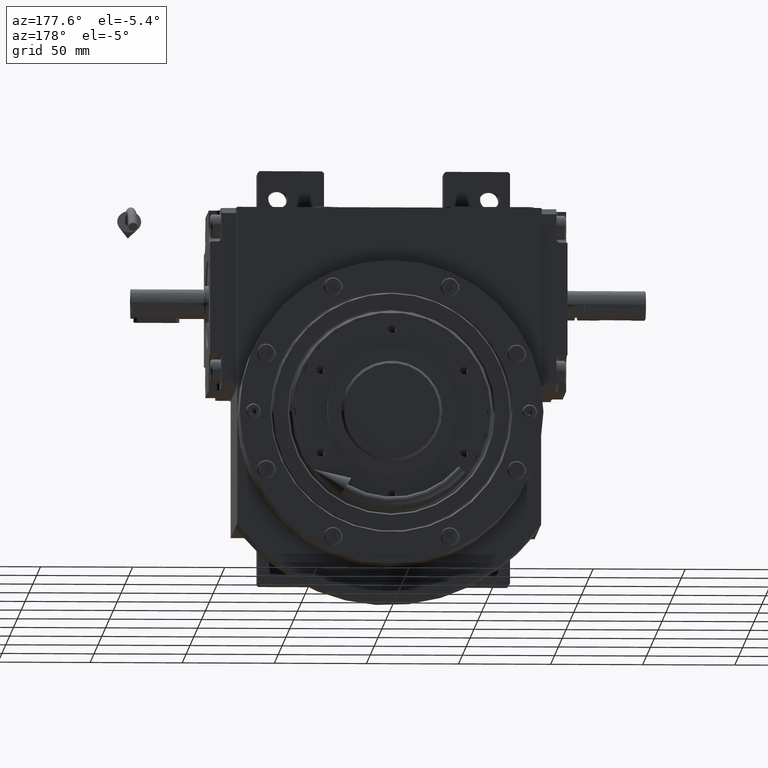
[diagram: clean part render]
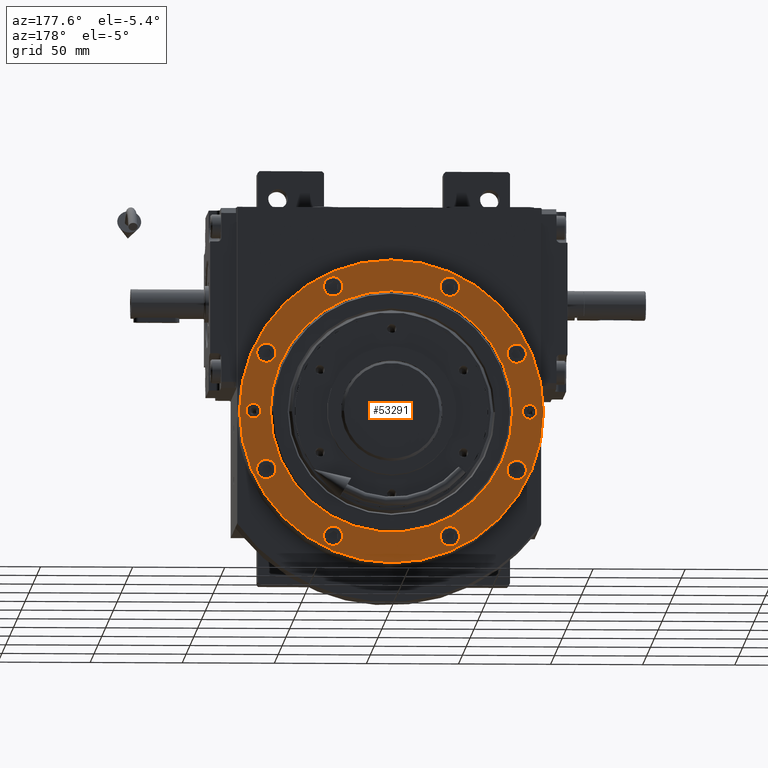
[diagram: same view with one face highlighted and labeled with its STEP entity id]
A machine part, auxiliary view. The second image highlights one B-rep face of the part: STEP entity #53291.
In plain terms, the highlighted planar face has unit normal (0, 1, 0).
Its self-contained STEP definition (entity closure, byte-faithful):
#33 = EDGE_LOOP ( 'NONE', ( #10800, #19162 ) ) ;
#389 = CARTESIAN_POINT ( 'NONE',  ( 26.44636963054999867, 67.97308402775000502, 30.49999999999999289 ) ) ;
#425 = CARTESIAN_POINT ( 'NONE',  ( -71.00000000000001421, 1.521575012437008940E-14, 30.49999999999999289 ) ) ;
#809 = ORIENTED_EDGE ( 'NONE', *, *, #32260, .F. ) ;
#834 = EDGE_CURVE ( 'NONE', #56146, #12141, #54883, .T. ) ;
#1018 = DIRECTION ( 'NONE',  ( 0.000000000000000000, 0.000000000000000000, -1.000000000000000000 ) ) ;
#1527 = ORIENTED_EDGE ( 'NONE', *, *, #50122, .T. ) ;
#1561 = DIRECTION ( 'NONE',  ( -1.000000000000000000, 0.000000000000000000, 0.000000000000000000 ) ) ;
#1633 = ORIENTED_EDGE ( 'NONE', *, *, #9458, .F. ) ;
#2034 = PLANE ( 'NONE',  #27391 ) ;
#2068 = DIRECTION ( 'NONE',  ( 1.000000000000000000, 0.000000000000000000, 0.000000000000000000 ) ) ;
#2167 = EDGE_CURVE ( 'NONE', #12141, #46034, #46829, .T. ) ;
#2206 = AXIS2_PLACEMENT_3D ( 'NONE', #13892, #28462, #19049 ) ;
#2379 = CIRCLE ( 'NONE', #59144, 5.249999999999997335 ) ;
#3156 = CARTESIAN_POINT ( 'NONE',  ( 82.49999999999998579, -1.010300241903009221E-14, 30.49999999999999289 ) ) ;
#3338 = CARTESIAN_POINT ( 'NONE',  ( 31.69636963055000223, -67.97308402775000502, 30.49999999999999289 ) ) ;
#3455 = CARTESIAN_POINT ( 'NONE',  ( 67.97308402774999081, -31.69636963055000223, 30.49999999999999289 ) ) ;
#3570 = VERTEX_POINT ( 'NONE', #4618 ) ;
#3676 = EDGE_CURVE ( 'NONE', #11133, #19390, #17561, .T. ) ;
#4008 = DIRECTION ( 'NONE',  ( 1.000000000000000000, 0.000000000000000000, 0.000000000000000000 ) ) ;
#4419 = ORIENTED_EDGE ( 'NONE', *, *, #33409, .T. ) ;
#4477 = ORIENTED_EDGE ( 'NONE', *, *, #3676, .F. ) ;
#4618 = CARTESIAN_POINT ( 'NONE',  ( -62.72308402775001213, 31.69636963055000223, 30.49999999999999289 ) ) ;
#4718 = CARTESIAN_POINT ( 'NONE',  ( -65.72795184286999870, 0.000000000000000000, 30.49999232216999445 ) ) ;
#5043 = CIRCLE ( 'NONE', #7103, 5.250000000000004441 ) ;
#5050 = EDGE_LOOP ( 'NONE', ( #39748, #44802 ) ) ;
#6029 = CIRCLE ( 'NONE', #46284, 4.000000000000003553 ) ;
#6436 = CARTESIAN_POINT ( 'NONE',  ( -73.22308402774999081, -31.69636963055000223, 30.49999999999999289 ) ) ;
#6452 = AXIS2_PLACEMENT_3D ( 'NONE', #57870, #53049, #23589 ) ;
#6542 = AXIS2_PLACEMENT_3D ( 'NONE', #10741, #1018, #30771 ) ;
#7103 = AXIS2_PLACEMENT_3D ( 'NONE', #63644, #59121, #48701 ) ;
#7267 = VERTEX_POINT ( 'NONE', #41199 ) ;
#8643 = CIRCLE ( 'NONE', #13795, 5.249999999999997335 ) ;
#8681 = EDGE_CURVE ( 'NONE', #50046, #7267, #38544, .T. ) ;
#8884 = DIRECTION ( 'NONE',  ( 0.000000000000000000, 0.000000000000000000, 1.000000000000000000 ) ) ;
#9085 = EDGE_CURVE ( 'NONE', #59085, #54147, #40626, .T. ) ;
#9404 = EDGE_CURVE ( 'NONE', #56834, #3570, #23069, .T. ) ;
#9458 = EDGE_CURVE ( 'NONE', #41599, #57213, #8643, .T. ) ;
#9707 = DIRECTION ( 'NONE',  ( 0.000000000000000000, 0.000000000000000000, 1.000000000000000000 ) ) ;
#9805 = EDGE_CURVE ( 'NONE', #28132, #36529, #51036, .T. ) ;
#9974 = CARTESIAN_POINT ( 'NONE',  ( -67.97308402775001923, -31.69636963055000223, 30.49999999999999289 ) ) ;
#10029 = CIRCLE ( 'NONE', #12113, 5.249999999999997335 ) ;
#10594 = EDGE_LOOP ( 'NONE', ( #11540, #38630 ) ) ;
#10741 = CARTESIAN_POINT ( 'NONE',  ( 2.060573933704000491E-13, 4.440892098501000776E-13, 30.49999232216999445 ) ) ;
#10800 = ORIENTED_EDGE ( 'NONE', *, *, #26251, .F. ) ;
#11133 = VERTEX_POINT ( 'NONE', #39059 ) ;
#11540 = ORIENTED_EDGE ( 'NONE', *, *, #52260, .F. ) ;
#11635 = CARTESIAN_POINT ( 'NONE',  ( -31.69636963055000223, 67.97308402775000502, 30.49999999999999289 ) ) ;
#11729 = DIRECTION ( 'NONE',  ( -1.000000000000000000, 0.000000000000000000, 0.000000000000000000 ) ) ;
#11863 = ORIENTED_EDGE ( 'NONE', *, *, #17849, .F. ) ;
#11904 = DIRECTION ( 'NONE',  ( -1.000000000000000000, 0.000000000000000000, 0.000000000000000000 ) ) ;
#12113 = AXIS2_PLACEMENT_3D ( 'NONE', #34709, #8884, #14022 ) ;
#12141 = VERTEX_POINT ( 'NONE', #30496 ) ;
#12197 = VERTEX_POINT ( 'NONE', #425 ) ;
#12690 = FACE_BOUND ( 'NONE', #21870, .T. ) ;
#12772 = CARTESIAN_POINT ( 'NONE',  ( -75.00000000000001421, 1.423604886319003288E-14, 30.49999999999999289 ) ) ;
#13473 = DIRECTION ( 'NONE',  ( 1.000000000000000000, 0.000000000000000000, 0.000000000000000000 ) ) ;
#13733 = DIRECTION ( 'NONE',  ( 0.000000000000000000, 0.000000000000000000, -1.000000000000000000 ) ) ;
#13789 = CARTESIAN_POINT ( 'NONE',  ( -36.94636963055000223, -67.97308402775000502, 30.49999999999999289 ) ) ;
#13795 = AXIS2_PLACEMENT_3D ( 'NONE', #11635, #46223, #51725 ) ;
#13892 = CARTESIAN_POINT ( 'NONE',  ( 1.918465386552000143E-13, 1.438849039913999161E-13, 30.49999232216999445 ) ) ;
#14017 = CARTESIAN_POINT ( 'NONE',  ( 73.22308402774999081, 31.69636963055000223, 30.49999999999999289 ) ) ;
#14022 = DIRECTION ( 'NONE',  ( 1.000000000000000000, 0.000000000000000000, 0.000000000000000000 ) ) ;
#14635 = VERTEX_POINT ( 'NONE', #37178 ) ;
#15444 = DIRECTION ( 'NONE',  ( 0.000000000000000000, 0.000000000000000000, -1.000000000000000000 ) ) ;
#15588 = CARTESIAN_POINT ( 'NONE',  ( 67.97308402774999081, -31.69636963055000223, 30.49999999999999289 ) ) ;
#15749 = ORIENTED_EDGE ( 'NONE', *, *, #9805, .T. ) ;
#15944 = EDGE_CURVE ( 'NONE', #28303, #14635, #44658, .T. ) ;
#15970 = CIRCLE ( 'NONE', #20125, 5.250000000000004441 ) ;
#16193 = VERTEX_POINT ( 'NONE', #6436 ) ;
#16808 = ORIENTED_EDGE ( 'NONE', *, *, #31658, .F. ) ;
#16848 = ORIENTED_EDGE ( 'NONE', *, *, #31490, .T. ) ;
#17050 = DIRECTION ( 'NONE',  ( 0.000000000000000000, 0.000000000000000000, 1.000000000000000000 ) ) ;
#17202 = CIRCLE ( 'NONE', #52357, 5.250000000000000888 ) ;
#17276 = EDGE_LOOP ( 'NONE', ( #25612, #24587, #1527 ) ) ;
#17523 = FACE_BOUND ( 'NONE', #58246, .T. ) ;
#17561 = CIRCLE ( 'NONE', #46484, 5.250000000000004441 ) ;
#17849 = EDGE_CURVE ( 'NONE', #32977, #57525, #17202, .T. ) ;
#17858 = FACE_BOUND ( 'NONE', #42935, .T. ) ;
#17896 = DIRECTION ( 'NONE',  ( 1.000000000000000000, 0.000000000000000000, 0.000000000000000000 ) ) ;
#18895 = AXIS2_PLACEMENT_3D ( 'NONE', #23878, #24824, #44879 ) ;
#18923 = AXIS2_PLACEMENT_3D ( 'NONE', #27295, #62527, #37941 ) ;
#19040 = CARTESIAN_POINT ( 'NONE',  ( -36.94636963055000223, 67.97308402775000502, 30.49999999999999289 ) ) ;
#19049 = DIRECTION ( 'NONE',  ( -1.000000000000000000, 0.000000000000000000, 0.000000000000000000 ) ) ;
#19162 = ORIENTED_EDGE ( 'NONE', *, *, #53576, .F. ) ;
#19390 = VERTEX_POINT ( 'NONE', #39638 ) ;
#19917 = DIRECTION ( 'NONE',  ( 0.000000000000000000, 0.000000000000000000, 1.000000000000000000 ) ) ;
#19964 = AXIS2_PLACEMENT_3D ( 'NONE', #40405, #9707, #45261 ) ;
#20125 = AXIS2_PLACEMENT_3D ( 'NONE', #28446, #19917, #48161 ) ;
#21870 = EDGE_LOOP ( 'NONE', ( #56902, #11863 ) ) ;
#22386 = FACE_BOUND ( 'NONE', #10594, .T. ) ;
#23069 = CIRCLE ( 'NONE', #19964, 5.250000000000004441 ) ;
#23141 = CARTESIAN_POINT ( 'NONE',  ( 31.69636963055000223, 67.97308402775000502, 30.49999999999999289 ) ) ;
#23589 = DIRECTION ( 'NONE',  ( -1.000000000000000000, 0.000000000000000000, 0.000000000000000000 ) ) ;
#23748 = CARTESIAN_POINT ( 'NONE',  ( -82.50000000000001421, 2.020633851199993078E-14, 30.49999999999999289 ) ) ;
#23878 = CARTESIAN_POINT ( 'NONE',  ( -31.69636963055000223, 67.97308402775000502, 30.49999999999999289 ) ) ;
#24587 = ORIENTED_EDGE ( 'NONE', *, *, #2167, .T. ) ;
#24824 = DIRECTION ( 'NONE',  ( 0.000000000000000000, 0.000000000000000000, 1.000000000000000000 ) ) ;
#25104 = CARTESIAN_POINT ( 'NONE',  ( -79.00000000000001421, 1.374620632166009432E-14, 30.49999999999999289 ) ) ;
#25612 = ORIENTED_EDGE ( 'NONE', *, *, #834, .T. ) ;
#25807 = CARTESIAN_POINT ( 'NONE',  ( -67.97308402775001923, 31.69636963055000223, 30.49999999999999289 ) ) ;
#26154 = EDGE_CURVE ( 'NONE', #57303, #12197, #31340, .T. ) ;
#26251 = EDGE_CURVE ( 'NONE', #53805, #16193, #57129, .T. ) ;
#26654 = CARTESIAN_POINT ( 'NONE',  ( 0.000000000000000000, 0.000000000000000000, 30.49999999999999289 ) ) ;
#27295 = CARTESIAN_POINT ( 'NONE',  ( 2.060573933704000491E-13, 4.440892098501000776E-13, 30.49999232216999445 ) ) ;
#27391 = AXIS2_PLACEMENT_3D ( 'NONE', #36640, #32094, #42124 ) ;
#27561 = FACE_BOUND ( 'NONE', #33, .T. ) ;
#27852 = EDGE_CURVE ( 'NONE', #57213, #41599, #41634, .T. ) ;
#28132 = VERTEX_POINT ( 'NONE', #51661 ) ;
#28303 = VERTEX_POINT ( 'NONE', #13789 ) ;
#28446 = CARTESIAN_POINT ( 'NONE',  ( -67.97308402775001923, -31.69636963055000223, 30.49999999999999289 ) ) ;
#28462 = DIRECTION ( 'NONE',  ( 0.000000000000000000, 0.000000000000000000, -1.000000000000000000 ) ) ;
#28601 = CARTESIAN_POINT ( 'NONE',  ( -31.69636963055000223, -67.97308402775000502, 30.49999999999999289 ) ) ;
#28899 = CARTESIAN_POINT ( 'NONE',  ( 67.97308402774999081, 31.69636963055000223, 30.49999999999999289 ) ) ;
#30258 = AXIS2_PLACEMENT_3D ( 'NONE', #58180, #53342, #63657 ) ;
#30274 = CARTESIAN_POINT ( 'NONE',  ( 26.44636963054999867, -67.97308402775000502, 30.49999999999999289 ) ) ;
#30496 = CARTESIAN_POINT ( 'NONE',  ( 65.72795184286999870, 1.310051197827999923E-14, 30.49999232216999445 ) ) ;
#30771 = DIRECTION ( 'NONE',  ( 1.000000000000000000, 0.000000000000000000, 0.000000000000000000 ) ) ;
#31309 = DIRECTION ( 'NONE',  ( 0.000000000000000000, 0.000000000000000000, 1.000000000000000000 ) ) ;
#31340 = CIRCLE ( 'NONE', #30258, 4.000000000000003553 ) ;
#31351 = AXIS2_PLACEMENT_3D ( 'NONE', #26654, #50285, #2068 ) ;
#31490 = EDGE_CURVE ( 'NONE', #54147, #59085, #54970, .T. ) ;
#31625 = CARTESIAN_POINT ( 'NONE',  ( 74.99999999999998579, 0.000000000000000000, 30.49999999999999289 ) ) ;
#31658 = EDGE_CURVE ( 'NONE', #19390, #11133, #59565, .T. ) ;
#31695 = AXIS2_PLACEMENT_3D ( 'NONE', #3455, #57459, #13473 ) ;
#31931 = CARTESIAN_POINT ( 'NONE',  ( 0.000000000000000000, 0.000000000000000000, 30.49999999999999289 ) ) ;
#32094 = DIRECTION ( 'NONE',  ( 0.000000000000000000, 0.000000000000000000, 1.000000000000000000 ) ) ;
#32260 = EDGE_CURVE ( 'NONE', #7267, #50046, #10029, .T. ) ;
#32305 = EDGE_CURVE ( 'NONE', #14635, #28303, #57587, .T. ) ;
#32419 = FACE_BOUND ( 'NONE', #62575, .T. ) ;
#32673 = DIRECTION ( 'NONE',  ( -1.000000000000000000, 0.000000000000000000, 0.000000000000000000 ) ) ;
#32977 = VERTEX_POINT ( 'NONE', #30274 ) ;
#33118 = ORIENTED_EDGE ( 'NONE', *, *, #46684, .T. ) ;
#33409 = EDGE_CURVE ( 'NONE', #12197, #57303, #6029, .T. ) ;
#34327 = ORIENTED_EDGE ( 'NONE', *, *, #15944, .F. ) ;
#34628 = CARTESIAN_POINT ( 'NONE',  ( -73.22308402774999081, 31.69636963055000223, 30.49999999999999289 ) ) ;
#34709 = CARTESIAN_POINT ( 'NONE',  ( 31.69636963055000223, 67.97308402775000502, 30.49999999999999289 ) ) ;
#35200 = DIRECTION ( 'NONE',  ( 1.000000000000000000, 0.000000000000000000, 0.000000000000000000 ) ) ;
#35560 = AXIS2_PLACEMENT_3D ( 'NONE', #63632, #54260, #42968 ) ;
#36321 = CARTESIAN_POINT ( 'NONE',  ( 62.72308402774998370, 31.69636963055000223, 30.49999999999999289 ) ) ;
#36521 = CIRCLE ( 'NONE', #6542, 65.72795184286999870 ) ;
#36529 = VERTEX_POINT ( 'NONE', #51996 ) ;
#36640 = CARTESIAN_POINT ( 'NONE',  ( 0.000000000000000000, 0.000000000000000000, 30.49999999999999289 ) ) ;
#36749 = EDGE_LOOP ( 'NONE', ( #4419, #41669 ) ) ;
#36949 = FACE_BOUND ( 'NONE', #17276, .T. ) ;
#37075 = VERTEX_POINT ( 'NONE', #14017 ) ;
#37178 = CARTESIAN_POINT ( 'NONE',  ( -26.44636963054999867, -67.97308402775000502, 30.49999999999999289 ) ) ;
#37517 = VERTEX_POINT ( 'NONE', #36321 ) ;
#37691 = DIRECTION ( 'NONE',  ( 0.000000000000000000, 0.000000000000000000, 1.000000000000000000 ) ) ;
#37893 = FACE_BOUND ( 'NONE', #59858, .T. ) ;
#37941 = DIRECTION ( 'NONE',  ( 1.000000000000000000, 0.000000000000000000, 0.000000000000000000 ) ) ;
#38131 = CARTESIAN_POINT ( 'NONE',  ( -26.44636963054999867, 67.97308402775000502, 30.49999999999999289 ) ) ;
#38544 = CIRCLE ( 'NONE', #41652, 5.250000000000000888 ) ;
#38630 = ORIENTED_EDGE ( 'NONE', *, *, #9404, .F. ) ;
#39059 = CARTESIAN_POINT ( 'NONE',  ( 62.72308402774998370, -31.69636963055000223, 30.49999999999999289 ) ) ;
#39255 = AXIS2_PLACEMENT_3D ( 'NONE', #31625, #15444, #11904 ) ;
#39638 = CARTESIAN_POINT ( 'NONE',  ( 73.22308402774999081, -31.69636963055000223, 30.49999999999999289 ) ) ;
#39748 = ORIENTED_EDGE ( 'NONE', *, *, #63495, .F. ) ;
#40405 = CARTESIAN_POINT ( 'NONE',  ( -67.97308402775001923, 31.69636963055000223, 30.49999999999999289 ) ) ;
#40626 = CIRCLE ( 'NONE', #31351, 82.50000000000000000 ) ;
#41199 = CARTESIAN_POINT ( 'NONE',  ( 36.94636963055000223, 67.97308402775000502, 30.49999999999999289 ) ) ;
#41494 = FACE_BOUND ( 'NONE', #36749, .T. ) ;
#41586 = CARTESIAN_POINT ( 'NONE',  ( -62.72308402775001213, -31.69636963055000223, 30.49999999999999289 ) ) ;
#41599 = VERTEX_POINT ( 'NONE', #19040 ) ;
#41634 = CIRCLE ( 'NONE', #18895, 5.250000000000000888 ) ;
#41652 = AXIS2_PLACEMENT_3D ( 'NONE', #23141, #37691, #61961 ) ;
#41669 = ORIENTED_EDGE ( 'NONE', *, *, #26154, .T. ) ;
#42124 = DIRECTION ( 'NONE',  ( 1.000000000000000000, 0.000000000000000000, 0.000000000000000000 ) ) ;
#42218 = CARTESIAN_POINT ( 'NONE',  ( 36.94636963055000223, -67.97308402775000502, 30.49999999999999289 ) ) ;
#42264 = CIRCLE ( 'NONE', #59795, 5.250000000000004441 ) ;
#42391 = DIRECTION ( 'NONE',  ( 0.000000000000000000, 0.000000000000000000, 1.000000000000000000 ) ) ;
#42483 = DIRECTION ( 'NONE',  ( 0.000000000000000000, 0.000000000000000000, 1.000000000000000000 ) ) ;
#42698 = AXIS2_PLACEMENT_3D ( 'NONE', #9974, #49107, #35200 ) ;
#42826 = DIRECTION ( 'NONE',  ( 0.000000000000000000, 0.000000000000000000, 1.000000000000000000 ) ) ;
#42935 = EDGE_LOOP ( 'NONE', ( #809, #58082 ) ) ;
#42968 = DIRECTION ( 'NONE',  ( 1.000000000000000000, 0.000000000000000000, 0.000000000000000000 ) ) ;
#44655 = CARTESIAN_POINT ( 'NONE',  ( 2.060573933704000491E-13, -65.72795184287261350, 30.49999232216999445 ) ) ;
#44658 = CIRCLE ( 'NONE', #6452, 5.249999999999997335 ) ;
#44802 = ORIENTED_EDGE ( 'NONE', *, *, #45091, .F. ) ;
#44879 = DIRECTION ( 'NONE',  ( 1.000000000000000000, 0.000000000000000000, 0.000000000000000000 ) ) ;
#45091 = EDGE_CURVE ( 'NONE', #37517, #37075, #5043, .T. ) ;
#45261 = DIRECTION ( 'NONE',  ( -1.000000000000000000, 0.000000000000000000, 0.000000000000000000 ) ) ;
#46034 = VERTEX_POINT ( 'NONE', #44655 ) ;
#46223 = DIRECTION ( 'NONE',  ( 0.000000000000000000, 0.000000000000000000, 1.000000000000000000 ) ) ;
#46284 = AXIS2_PLACEMENT_3D ( 'NONE', #12772, #13733, #48006 ) ;
#46484 = AXIS2_PLACEMENT_3D ( 'NONE', #15588, #58642, #11729 ) ;
#46491 = DIRECTION ( 'NONE',  ( 1.000000000000000000, 0.000000000000000000, 0.000000000000000000 ) ) ;
#46684 = EDGE_CURVE ( 'NONE', #36529, #28132, #52715, .T. ) ;
#46829 = CIRCLE ( 'NONE', #18923, 65.72795184286999870 ) ;
#47233 = CARTESIAN_POINT ( 'NONE',  ( 31.69636963055000223, -67.97308402775000502, 30.49999999999999289 ) ) ;
#48006 = DIRECTION ( 'NONE',  ( 1.000000000000000000, 0.000000000000000000, 0.000000000000000000 ) ) ;
#48122 = ORIENTED_EDGE ( 'NONE', *, *, #27852, .F. ) ;
#48161 = DIRECTION ( 'NONE',  ( -1.000000000000000000, 0.000000000000000000, 0.000000000000000000 ) ) ;
#48318 = DIRECTION ( 'NONE',  ( 0.000000000000000000, 0.000000000000000000, 1.000000000000000000 ) ) ;
#48701 = DIRECTION ( 'NONE',  ( -1.000000000000000000, 0.000000000000000000, 0.000000000000000000 ) ) ;
#49107 = DIRECTION ( 'NONE',  ( 0.000000000000000000, 0.000000000000000000, 1.000000000000000000 ) ) ;
#49790 = ORIENTED_EDGE ( 'NONE', *, *, #32305, .F. ) ;
#50030 = CIRCLE ( 'NONE', #51060, 5.250000000000004441 ) ;
#50046 = VERTEX_POINT ( 'NONE', #389 ) ;
#50122 = EDGE_CURVE ( 'NONE', #46034, #56146, #36521, .T. ) ;
#50285 = DIRECTION ( 'NONE',  ( 0.000000000000000000, 0.000000000000000000, 1.000000000000000000 ) ) ;
#50624 = EDGE_LOOP ( 'NONE', ( #49790, #34327 ) ) ;
#51036 = CIRCLE ( 'NONE', #35560, 4.000000000000003553 ) ;
#51060 = AXIS2_PLACEMENT_3D ( 'NONE', #25807, #31309, #46491 ) ;
#51114 = EDGE_CURVE ( 'NONE', #57525, #32977, #2379, .T. ) ;
#51661 = CARTESIAN_POINT ( 'NONE',  ( 78.99999999999998579, 0.000000000000000000, 30.49999999999999289 ) ) ;
#51725 = DIRECTION ( 'NONE',  ( -1.000000000000000000, 0.000000000000000000, 0.000000000000000000 ) ) ;
#51996 = CARTESIAN_POINT ( 'NONE',  ( 70.99999999999998579, 0.000000000000000000, 30.49999999999999289 ) ) ;
#52260 = EDGE_CURVE ( 'NONE', #3570, #56834, #50030, .T. ) ;
#52357 = AXIS2_PLACEMENT_3D ( 'NONE', #47233, #42391, #32673 ) ;
#52715 = CIRCLE ( 'NONE', #39255, 4.000000000000003553 ) ;
#53049 = DIRECTION ( 'NONE',  ( 0.000000000000000000, 0.000000000000000000, 1.000000000000000000 ) ) ;
#53291 = ADVANCED_FACE ( 'NONE', ( #56675, #17523, #41494, #56994, #17858, #32419, #22386, #27561, #57311, #12690, #37893, #36949 ), #2034, .T. ) ;
#53342 = DIRECTION ( 'NONE',  ( 0.000000000000000000, 0.000000000000000000, -1.000000000000000000 ) ) ;
#53576 = EDGE_CURVE ( 'NONE', #16193, #53805, #15970, .T. ) ;
#53805 = VERTEX_POINT ( 'NONE', #41586 ) ;
#54147 = VERTEX_POINT ( 'NONE', #23748 ) ;
#54260 = DIRECTION ( 'NONE',  ( 0.000000000000000000, 0.000000000000000000, -1.000000000000000000 ) ) ;
#54883 = CIRCLE ( 'NONE', #2206, 65.72795184286999870 ) ;
#54970 = CIRCLE ( 'NONE', #63231, 82.50000000000000000 ) ;
#56146 = VERTEX_POINT ( 'NONE', #4718 ) ;
#56535 = AXIS2_PLACEMENT_3D ( 'NONE', #28601, #48318, #4008 ) ;
#56675 = FACE_OUTER_BOUND ( 'NONE', #60681, .T. ) ;
#56834 = VERTEX_POINT ( 'NONE', #34628 ) ;
#56902 = ORIENTED_EDGE ( 'NONE', *, *, #51114, .F. ) ;
#56994 = FACE_BOUND ( 'NONE', #5050, .T. ) ;
#57129 = CIRCLE ( 'NONE', #42698, 5.250000000000004441 ) ;
#57213 = VERTEX_POINT ( 'NONE', #38131 ) ;
#57303 = VERTEX_POINT ( 'NONE', #25104 ) ;
#57311 = FACE_BOUND ( 'NONE', #50624, .T. ) ;
#57335 = ORIENTED_EDGE ( 'NONE', *, *, #9085, .T. ) ;
#57459 = DIRECTION ( 'NONE',  ( 0.000000000000000000, 0.000000000000000000, 1.000000000000000000 ) ) ;
#57525 = VERTEX_POINT ( 'NONE', #42218 ) ;
#57587 = CIRCLE ( 'NONE', #56535, 5.250000000000000888 ) ;
#57870 = CARTESIAN_POINT ( 'NONE',  ( -31.69636963055000223, -67.97308402775000502, 30.49999999999999289 ) ) ;
#58082 = ORIENTED_EDGE ( 'NONE', *, *, #8681, .F. ) ;
#58180 = CARTESIAN_POINT ( 'NONE',  ( -75.00000000000001421, 1.423604886319003288E-14, 30.49999999999999289 ) ) ;
#58246 = EDGE_LOOP ( 'NONE', ( #15749, #33118 ) ) ;
#58642 = DIRECTION ( 'NONE',  ( 0.000000000000000000, 0.000000000000000000, 1.000000000000000000 ) ) ;
#59085 = VERTEX_POINT ( 'NONE', #3156 ) ;
#59121 = DIRECTION ( 'NONE',  ( 0.000000000000000000, 0.000000000000000000, 1.000000000000000000 ) ) ;
#59144 = AXIS2_PLACEMENT_3D ( 'NONE', #3338, #42483, #17896 ) ;
#59565 = CIRCLE ( 'NONE', #31695, 5.250000000000004441 ) ;
#59795 = AXIS2_PLACEMENT_3D ( 'NONE', #28899, #42826, #62227 ) ;
#59858 = EDGE_LOOP ( 'NONE', ( #16808, #4477 ) ) ;
#60681 = EDGE_LOOP ( 'NONE', ( #16848, #57335 ) ) ;
#61961 = DIRECTION ( 'NONE',  ( -1.000000000000000000, 0.000000000000000000, 0.000000000000000000 ) ) ;
#62227 = DIRECTION ( 'NONE',  ( 1.000000000000000000, 0.000000000000000000, 0.000000000000000000 ) ) ;
#62527 = DIRECTION ( 'NONE',  ( 0.000000000000000000, 0.000000000000000000, -1.000000000000000000 ) ) ;
#62575 = EDGE_LOOP ( 'NONE', ( #48122, #1633 ) ) ;
#63231 = AXIS2_PLACEMENT_3D ( 'NONE', #31931, #17050, #1561 ) ;
#63495 = EDGE_CURVE ( 'NONE', #37075, #37517, #42264, .T. ) ;
#63632 = CARTESIAN_POINT ( 'NONE',  ( 74.99999999999998579, 0.000000000000000000, 30.49999999999999289 ) ) ;
#63644 = CARTESIAN_POINT ( 'NONE',  ( 67.97308402774999081, 31.69636963055000223, 30.49999999999999289 ) ) ;
#63657 = DIRECTION ( 'NONE',  ( -1.000000000000000000, 0.000000000000000000, 0.000000000000000000 ) ) ;